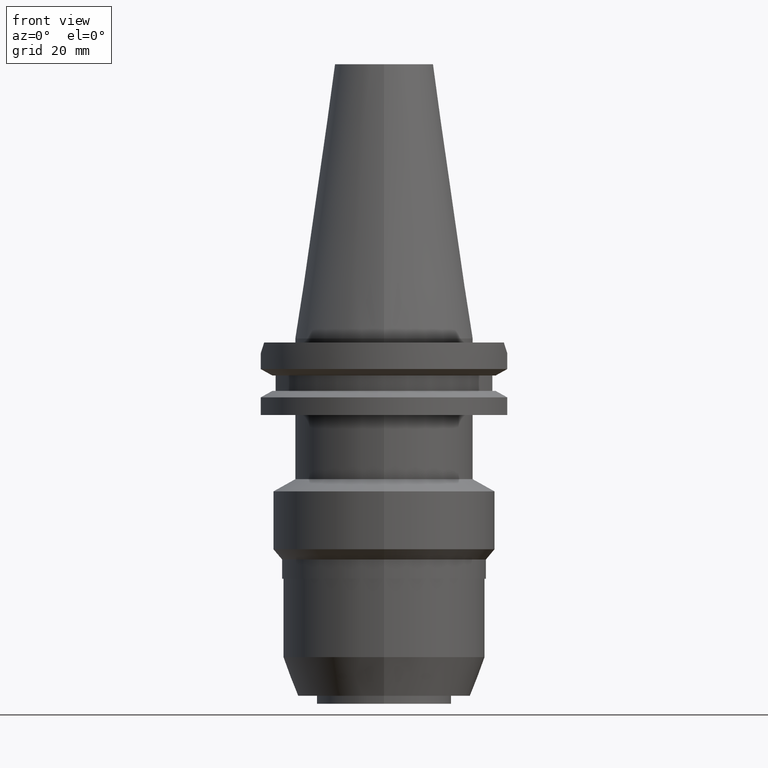
[diagram: clean part render]
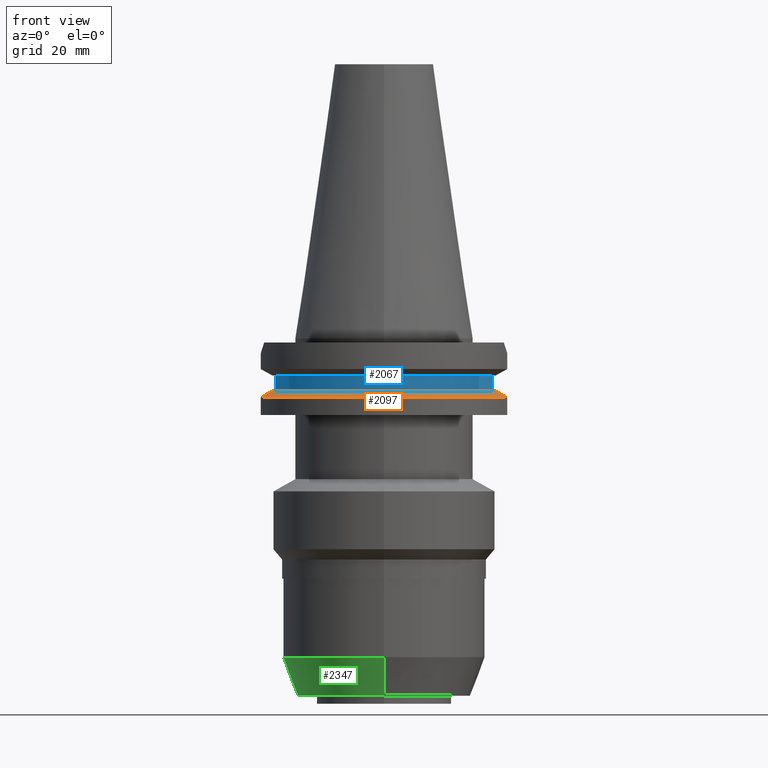
[diagram: same view with three faces highlighted in distinct colors, each labeled with its STEP entity id]
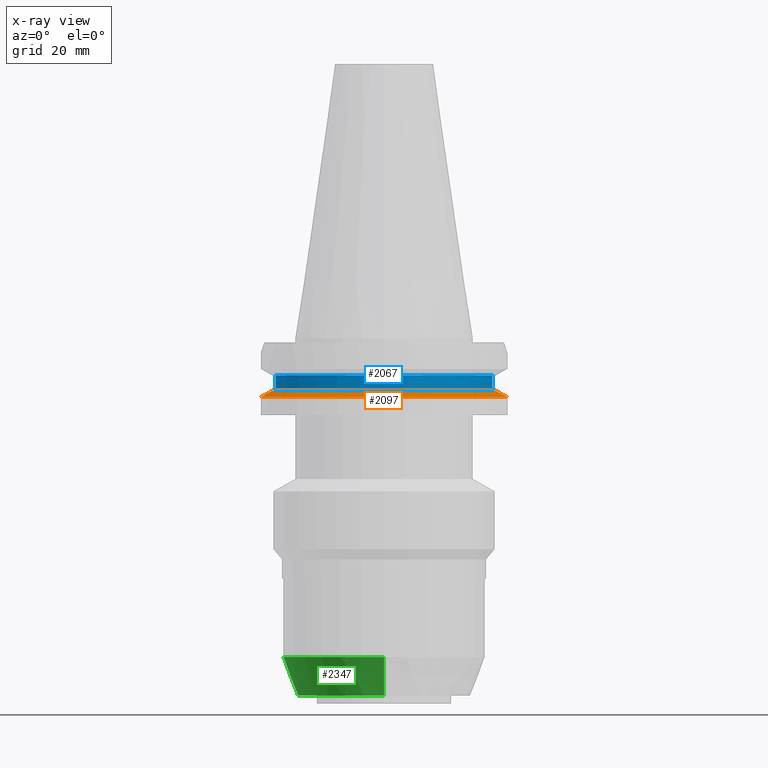
[diagram: x-ray of the same camera — body ghosted, the three highlighted faces saturated]
A machine part, front view with three faces highlighted in distinct colors.
The next image is the same camera in x-ray (body ghosted, the three faces saturated) — at least one of them is partly hidden behind the body in this view.
Their STEP definitions:

[orange] entity #2097 — the highlighted conical surface has half-angle 60 deg.
#750=CARTESIAN_POINT('',(0.E0,1.055026073065E-14,-1.30475E1));
#751=DIRECTION('',(0.E0,0.E0,-1.E0));
#752=DIRECTION('',(9.592008904640E-1,-2.827253998727E-1,0.E0));
#753=AXIS2_PLACEMENT_3D('',#750,#751,#752);
#758=CARTESIAN_POINT('',(0.E0,1.055026073065E-14,-1.30475E1));
#759=DIRECTION('',(0.E0,0.E0,-1.E0));
#760=DIRECTION('',(0.E0,-1.E0,0.E0));
#761=AXIS2_PLACEMENT_3D('',#758,#759,#760);
#782=CARTESIAN_POINT('',(2.778616453855E1,-8.190000190918E0,-1.30475E1));
#783=CARTESIAN_POINT('',(2.809960953960E1,-8.190000190918E0,-1.322108423954E1));
#784=CARTESIAN_POINT('',(2.873154722784E1,-8.189999991762E0,-1.357151584015E1));
#785=CARTESIAN_POINT('',(2.969464923448E1,-8.189999742454E0,-1.410692517592E1));
#786=CARTESIAN_POINT('',(3.034685342031E1,-8.190000606431E0,-1.447034859510E1));
#787=CARTESIAN_POINT('',(3.067550146398E1,-8.190000606431E0,-1.465367218826E1));
#792=CARTESIAN_POINT('',(0.E0,1.055026073065E-14,-1.465366676908E1));
#793=DIRECTION('',(0.E0,0.E0,-1.E0));
#794=DIRECTION('',(9.661575315241E-1,-2.579527559055E-1,0.E0));
#795=AXIS2_PLACEMENT_3D('',#792,#793,#794);
#800=CARTESIAN_POINT('',(0.E0,1.055026073065E-14,-1.465366676908E1));
#801=DIRECTION('',(0.E0,0.E0,-1.E0));
#802=DIRECTION('',(0.E0,-1.E0,0.E0));
#803=AXIS2_PLACEMENT_3D('',#800,#801,#802);
#808=CARTESIAN_POINT('',(-3.067550165946E1,-8.189999874252E0,
-1.465366564538E1));
#809=CARTESIAN_POINT('',(-3.034685955090E1,-8.189999874252E0,
-1.447034535939E1));
#810=CARTESIAN_POINT('',(-2.969465088345E1,-8.189999973377E0,
-1.410692875647E1));
#811=CARTESIAN_POINT('',(-2.873155242097E1,-8.190000281802E0,
-1.357152156126E1));
#812=CARTESIAN_POINT('',(-2.809960972051E1,-8.189999360210E0,
-1.322107741702E1));
#813=CARTESIAN_POINT('',(-2.778617704734E1,-8.189999360210E0,-1.30475E1));
#1430=CARTESIAN_POINT('',(3.067550146398E1,-8.190000606431E0,
-1.465367218826E1));
#1431=VERTEX_POINT('',#1430);
#1432=VERTEX_POINT('',#782);
#1442=CARTESIAN_POINT('',(-3.067550165946E1,-8.189999874252E0,
-1.465366564538E1));
#1443=VERTEX_POINT('',#1442);
#1444=CARTESIAN_POINT('',(0.E0,-3.175E1,-1.465366676908E1));
#1445=VERTEX_POINT('',#1444);
#1463=CARTESIAN_POINT('',(-2.778617704734E1,-8.189999360210E0,-1.30475E1));
#1464=VERTEX_POINT('',#1463);
#1485=CARTESIAN_POINT('',(3.537899182731E-14,-2.896803755053E1,-1.30475E1));
#1486=VERTEX_POINT('',#1485);
#2084=CARTESIAN_POINT('',(0.E0,1.055026073065E-14,-1.385058338454E1));
#2085=DIRECTION('',(0.E0,0.E0,-1.E0));
#2086=DIRECTION('',(0.E0,-1.E0,0.E0));
#2087=AXIS2_PLACEMENT_3D('',#2084,#2085,#2086);
#2088=CONICAL_SURFACE('',#2087,3.035901877527E1,6.E1);
#2089=ORIENTED_EDGE('',*,*,#1964,.T.);
#2090=ORIENTED_EDGE('',*,*,#1992,.T.);
#2091=ORIENTED_EDGE('',*,*,#1990,.T.);
#2092=ORIENTED_EDGE('',*,*,#2014,.T.);
#2093=ORIENTED_EDGE('',*,*,#2076,.F.);
#2094=ORIENTED_EDGE('',*,*,#2074,.F.);
#2095=EDGE_LOOP('',(#2089,#2090,#2091,#2092,#2093,#2094));
#2096=FACE_OUTER_BOUND('',#2095,.F.);
#754=CIRCLE('',#753,2.896803755053E1);
#762=CIRCLE('',#761,2.896803755053E1);
#788=B_SPLINE_CURVE_WITH_KNOTS('',3,(#782,#783,#784,#785,#786,#787),
.UNSPECIFIED.,.F.,.F.,(4,1,1,4),(0.E0,3.333333333333E-1,6.666666666667E-1,1.E0),
.UNSPECIFIED.);
#796=CIRCLE('',#795,3.175E1);
#804=CIRCLE('',#803,3.175E1);
#814=B_SPLINE_CURVE_WITH_KNOTS('',3,(#808,#809,#810,#811,#812,#813),
.UNSPECIFIED.,.F.,.F.,(4,1,1,4),(0.E0,3.333333333333E-1,6.666666666667E-1,1.E0),
.UNSPECIFIED.);
#1964=EDGE_CURVE('',#1432,#1431,#788,.T.);
#1990=EDGE_CURVE('',#1445,#1443,#804,.T.);
#1992=EDGE_CURVE('',#1431,#1445,#796,.T.);
#2014=EDGE_CURVE('',#1443,#1464,#814,.T.);
#2074=EDGE_CURVE('',#1432,#1486,#754,.T.);
#2076=EDGE_CURVE('',#1486,#1464,#762,.T.);
#2097=ADVANCED_FACE('',(#2096),#2088,.T.);

[blue] entity #2067 — the highlighted cylindrical surface (partial cylindrical patch) has radius 28.18 mm, axis along (0, 0, -1).
#690=CARTESIAN_POINT('',(0.E0,2.157919508608E-14,-9.2075E0));
#691=DIRECTION('',(0.E0,0.E0,-1.E0));
#692=DIRECTION('',(9.568350128908E-1,-2.906316536551E-1,0.E0));
#693=AXIS2_PLACEMENT_3D('',#690,#691,#692);
#698=CARTESIAN_POINT('',(0.E0,2.157919508608E-14,-9.2075E0));
#699=DIRECTION('',(0.E0,0.E0,-1.E0));
#700=DIRECTION('',(0.E0,-1.E0,0.E0));
#701=AXIS2_PLACEMENT_3D('',#698,#699,#700);
#729=DIRECTION('',(0.E0,0.E0,-1.E0));
#730=VECTOR('',#729,3.84E0);
#731=CARTESIAN_POINT('',(2.696361066326E1,-8.19E0,-9.2075E0));
#732=LINE('',#731,#730);
#736=DIRECTION('',(0.E0,0.E0,1.E0));
#737=VECTOR('',#736,3.84E0);
#738=CARTESIAN_POINT('',(-2.696361066326E1,-8.19E0,-1.30475E1));
#739=LINE('',#738,#737);
#766=CARTESIAN_POINT('',(0.E0,2.157919508608E-14,-1.30475E1));
#767=DIRECTION('',(0.E0,0.E0,1.E0));
#768=DIRECTION('',(-9.568350128908E-1,-2.906316536551E-1,0.E0));
#769=AXIS2_PLACEMENT_3D('',#766,#767,#768);
#774=CARTESIAN_POINT('',(0.E0,2.157919508608E-14,-1.30475E1));
#775=DIRECTION('',(0.E0,0.E0,1.E0));
#776=DIRECTION('',(0.E0,-1.E0,0.E0));
#777=AXIS2_PLACEMENT_3D('',#774,#775,#776);
#1433=CARTESIAN_POINT('',(2.696361066326E1,-8.19E0,-1.30475E1));
#1434=VERTEX_POINT('',#1433);
#1435=CARTESIAN_POINT('',(2.696361066326E1,-8.19E0,-9.2075E0));
#1436=VERTEX_POINT('',#1435);
#1459=CARTESIAN_POINT('',(-2.696361066326E1,-8.19E0,-9.2075E0));
#1460=VERTEX_POINT('',#1459);
#1461=CARTESIAN_POINT('',(-2.696361066326E1,-8.19E0,-1.30475E1));
#1462=VERTEX_POINT('',#1461);
#1490=CARTESIAN_POINT('',(6.305166448056E-14,-2.818E1,-1.30475E1));
#1491=VERTEX_POINT('',#1490);
#1496=CARTESIAN_POINT('',(-6.305166448056E-14,-2.818E1,-9.2075E0));
#1497=VERTEX_POINT('',#1496);
#2052=CARTESIAN_POINT('',(0.E0,2.157919508608E-14,7.62075E1));
#2053=DIRECTION('',(0.E0,0.E0,-1.E0));
#2054=DIRECTION('',(0.E0,-1.E0,0.E0));
#2055=AXIS2_PLACEMENT_3D('',#2052,#2053,#2054);
#2056=CYLINDRICAL_SURFACE('',#2055,2.818E1);
#2057=ORIENTED_EDGE('',*,*,#1968,.T.);
#2059=ORIENTED_EDGE('',*,*,#2058,.F.);
#2061=ORIENTED_EDGE('',*,*,#2060,.F.);
#2062=ORIENTED_EDGE('',*,*,#2010,.T.);
#2063=ORIENTED_EDGE('',*,*,#2044,.F.);
#2064=ORIENTED_EDGE('',*,*,#2042,.F.);
#2065=EDGE_LOOP('',(#2057,#2059,#2061,#2062,#2063,#2064));
#2066=FACE_OUTER_BOUND('',#2065,.F.);
#694=CIRCLE('',#693,2.818E1);
#702=CIRCLE('',#701,2.818E1);
#770=CIRCLE('',#769,2.818E1);
#778=CIRCLE('',#777,2.818E1);
#1968=EDGE_CURVE('',#1436,#1434,#732,.T.);
#2010=EDGE_CURVE('',#1462,#1460,#739,.T.);
#2042=EDGE_CURVE('',#1436,#1497,#694,.T.);
#2044=EDGE_CURVE('',#1497,#1460,#702,.T.);
#2058=EDGE_CURVE('',#1491,#1434,#778,.T.);
#2060=EDGE_CURVE('',#1462,#1491,#770,.T.);
#2067=ADVANCED_FACE('',(#2066),#2056,.T.);

[green] entity #2347 — the highlighted conical surface has half-angle 20 deg.
#1028=DIRECTION('',(0.E0,-3.420201433258E-1,-9.396926207858E-1));
#1029=VECTOR('',#1028,1.021610661577E1);
#1030=CARTESIAN_POINT('',(0.E0,2.5E1,-7.93E1));
#1031=LINE('',#1030,#1029);
#1043=CARTESIAN_POINT('',(0.E0,0.E0,-7.93E1));
#1044=DIRECTION('',(0.E0,0.E0,1.E0));
#1045=DIRECTION('',(0.E0,1.E0,0.E0));
#1046=AXIS2_PLACEMENT_3D('',#1043,#1044,#1045);
#1051=DIRECTION('',(0.E0,3.420201433258E-1,-9.396926207859E-1));
#1052=VECTOR('',#1051,1.021610661577E1);
#1053=CARTESIAN_POINT('',(0.E0,-2.5E1,-7.93E1));
#1054=LINE('',#1053,#1052);
#1066=CARTESIAN_POINT('',(0.E0,0.E0,-8.89E1));
#1067=DIRECTION('',(0.E0,0.E0,1.E0));
#1068=DIRECTION('',(0.E0,1.E0,0.E0));
#1069=AXIS2_PLACEMENT_3D('',#1066,#1067,#1068);
#1366=CARTESIAN_POINT('',(0.E0,-2.150588575104E1,-8.89E1));
#1367=CARTESIAN_POINT('',(0.E0,2.150588575104E1,-8.89E1));
#1368=VERTEX_POINT('',#1366);
#1369=VERTEX_POINT('',#1367);
#1370=CARTESIAN_POINT('',(0.E0,2.5E1,-7.93E1));
#1371=VERTEX_POINT('',#1370);
#1372=CARTESIAN_POINT('',(0.E0,-2.5E1,-7.93E1));
#1373=VERTEX_POINT('',#1372);
#2335=CARTESIAN_POINT('',(0.E0,0.E0,-8.41E1));
#2336=DIRECTION('',(0.E0,0.E0,1.E0));
#2337=DIRECTION('',(0.E0,1.E0,0.E0));
#2338=AXIS2_PLACEMENT_3D('',#2335,#2336,#2337);
#2339=CONICAL_SURFACE('',#2338,2.325294287552E1,2.E1);
#2340=ORIENTED_EDGE('',*,*,#2325,.F.);
#2341=ORIENTED_EDGE('',*,*,#2302,.T.);
#2342=ORIENTED_EDGE('',*,*,#2329,.T.);
#2344=ORIENTED_EDGE('',*,*,#2343,.F.);
#2345=EDGE_LOOP('',(#2340,#2341,#2342,#2344));
#2346=FACE_OUTER_BOUND('',#2345,.F.);
#1047=CIRCLE('',#1046,2.5E1);
#1070=CIRCLE('',#1069,2.150588575104E1);
#2302=EDGE_CURVE('',#1371,#1373,#1047,.T.);
#2325=EDGE_CURVE('',#1371,#1369,#1031,.T.);
#2329=EDGE_CURVE('',#1373,#1368,#1054,.T.);
#2343=EDGE_CURVE('',#1369,#1368,#1070,.T.);
#2347=ADVANCED_FACE('',(#2346),#2339,.T.);